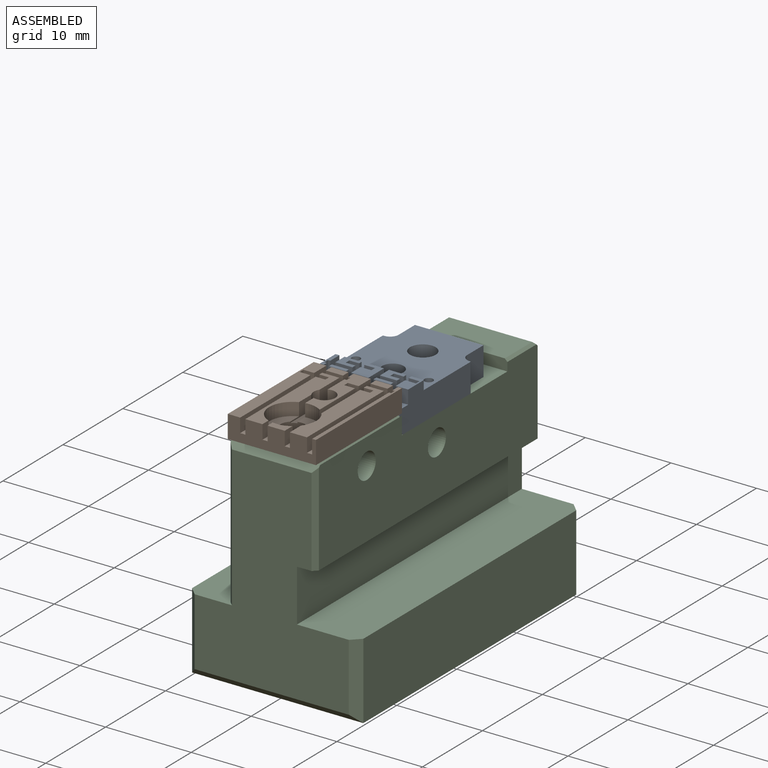
[diagram: assembled view]
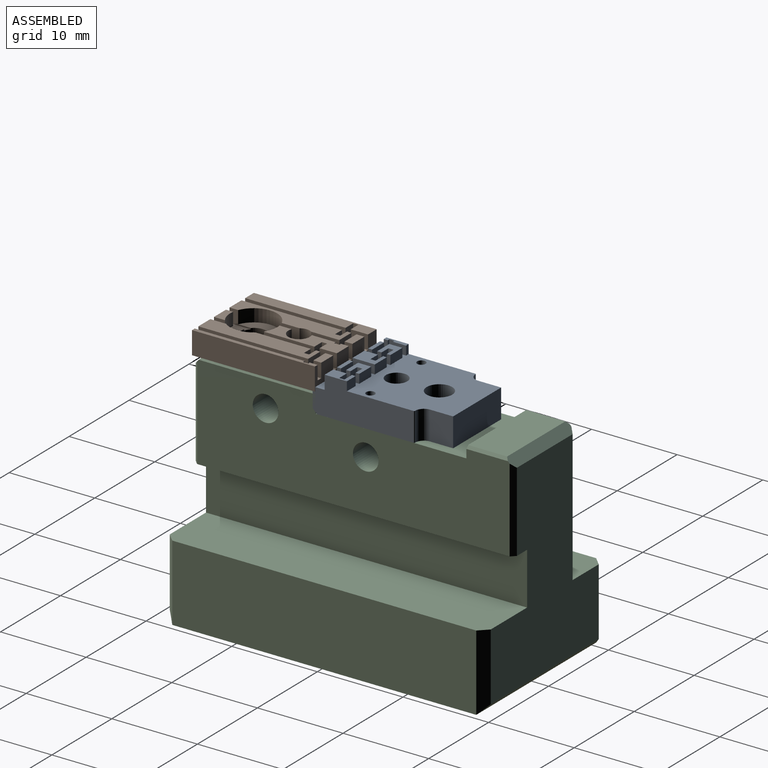
[diagram: assembled view, second angle]
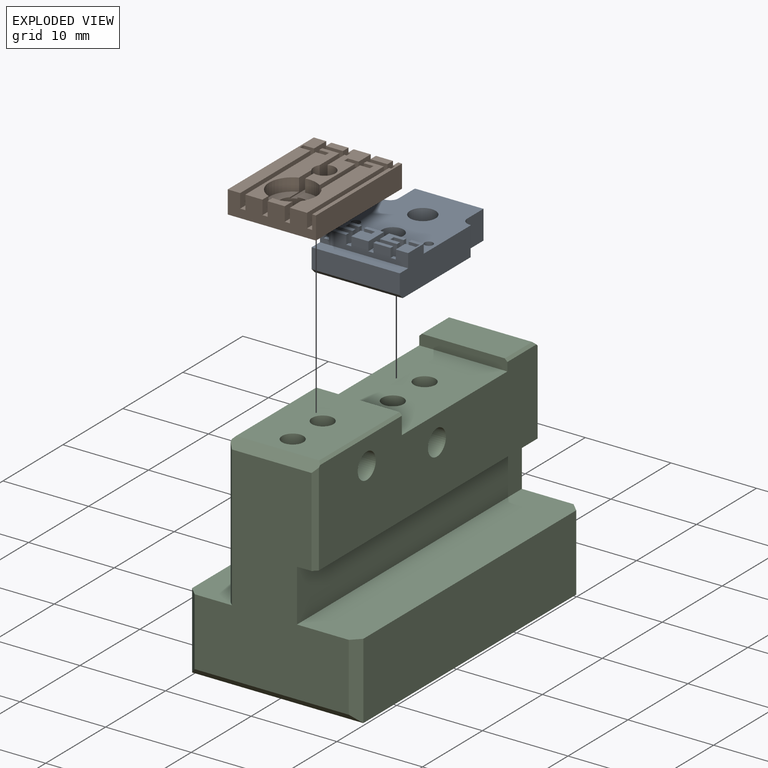
[diagram: exploded view]
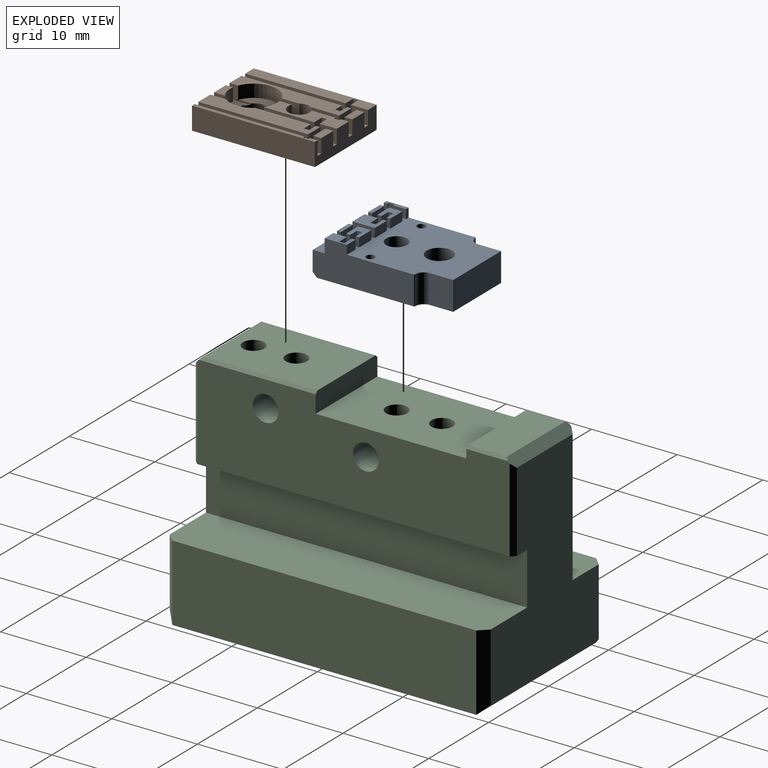
[diagram: exploded view, second angle]
ASSEMBLY  parts=3 mates=2
PART A: 68 faces, bbox 10.3x4.4x15.6 mm
  f0: plane 2x1.05mm, normal (0,0,1), area 2.1mm2, adj f6,f44,f63,f67
  f1: plane 2x1.05mm, normal (0,0,1), area 2.1mm2, adj f7,f44,f54,f62
  f2: plane 2x1.05mm, normal (0,0,1), area 2.1mm2, adj f9,f44,f53,f65
  f3: plane 1.45x1.05mm, normal (0,0,1), area 1.5mm2, adj f18,f20,f44,f64
  f4: plane 2.6x0.45mm, normal (0,-1,0), area 1mm2, adj f10,f11,f17,f19,f24,f45,f61,f66
  f5: plane 2x0.47mm, normal (0,-1,0), area 0.9mm2, adj f11,f17,f55,f60
  f6: plane 2x1.53mm, normal (0,-1,0), area 2.4mm2, adj f0,f10,f30,f31,f32,f58,f63,f67
  f7: plane 2.6x2mm, normal (0,-1,0), area 4.4mm2, adj f1,f17,f29,f30,f32,f54,f57,f62
  f8: plane 2x0.47mm, normal (0,-1,0), area 0.9mm2, adj f15,f17,f48,f52
  f9: plane 2x1.53mm, normal (0,-1,0), area 2.4mm2, adj f2,f13,f26,f27,f28,f51,f53,f65
  f10: plane 4.41x3mm, normal (0,0,-1), area 12.5mm2, adj f4,f6,f12,f22,f24,f44,f56,f58
  f11: plane 4.41x3mm, normal (0,0,1), area 12.5mm2, adj f4,f5,f12,f22,f24,f55,f56,f59
  f12: plane 3.36x0.6mm, normal (-1,0,0), area 2mm2, adj f10,f11,f22,f56
  f13: plane 4.41x3mm, normal (0,0,-1), area 12.2mm2, adj f9,f14,f16,f22,f44,f49,f51,f53
  f14: plane 3.36x0.6mm, normal (1,0,0), area 2mm2, adj f13,f15,f22,f44
  f15: plane 4.41x3mm, normal (0,0,1), area 12.2mm2, adj f8,f14,f16,f22,f44,f48,f49,f52
  f16: plane 3.36x0.6mm, normal (-1,0,0), area 2mm2, adj f13,f15,f22,f49
  f17: plane 10.3x1.6mm, normal (0,0,-1), area 14mm2, adj f4,f5,f7,f8,f18,f19,f20,f44
  f18: plane 2.6x1.45mm, normal (0,-1,0), area 3mm2, adj f3,f17,f20,f25,f26,f28,f50,f64
  f19: plane 11.79x4.41mm, normal (-1,0,0), area 41.4mm2, adj f4,f17,f22,f23,f42,f44,f45,f46
  f20: plane 11.79x4.41mm, normal (1,0,0), area 41.4mm2, adj f3,f17,f18,f22,f23,f43,f44,f46
  f21: plane 8x3.36mm, normal (0,0,1), area 26.9mm2, adj f22,f37,f39,f44
  f22: plane 15.1x10.3mm, normal (0,1,0), area 126.7mm2, adj f10,f11,f12,f13,f14,f15,f16,f19
  f23: plane 10.3x2.31mm, normal (0,0,-1), area 23.8mm2, adj f19,f20,f46,f47
  f24: plane 4.41x0.6mm, normal (1,0,0), area 2.6mm2, adj f4,f10,f11,f22
  f25: plane 4.41x0.6mm, normal (-1,0,0), area 2.6mm2, adj f18,f22,f26,f28
  f26: plane 4.41x3mm, normal (0,0,-1), area 12.6mm2, adj f9,f18,f22,f25,f27,f44,f64,f65
  f27: plane 4.41x0.6mm, normal (1,0,0), area 2.6mm2, adj f9,f22,f26,f28
  f28: plane 4.41x3mm, normal (0,0,1), area 12.6mm2, adj f9,f18,f22,f25,f27,f49,f50,f51
  f29: plane 4.41x0.6mm, normal (-1,0,0), area 2.6mm2, adj f7,f22,f30,f32
  f30: plane 4.41x3mm, normal (0,0,-1), area 12.6mm2, adj f6,f7,f22,f29,f31,f44,f62,f63
  f31: plane 4.41x0.6mm, normal (1,0,0), area 2.6mm2, adj f6,f22,f30,f32
  f32: plane 4.41x3mm, normal (0,0,1), area 12.6mm2, adj f6,f7,f22,f29,f31,f56,f57,f58
  f33: cylinder r=0.5mm len=3.36mm, axis (0,-1,0), area 10.6mm2, adj f22,f44
  f34: cylinder r=0.5mm len=3.36mm, axis (0,-1,0), area 10.6mm2, adj f22,f44
  f35: cylinder r=1.5mm len=3.36mm, axis (0,-1,0), area 31.7mm2, adj f22,f44
  f36: cylinder r=1.25mm len=3.36mm, axis (0,-1,0), area 26.4mm2, adj f22,f44
  f37: plane 3.36x2.71mm, normal (1,0,0), area 9.1mm2, adj f21,f22,f38,f44
  f38: cylinder r=1mm len=3.36mm, axis (0,-1,0), area 5.4mm2, adj f22,f37,f43,f44
  f39: plane 3.36x2.57mm, normal (-1,0,0), area 8.6mm2, adj f21,f22,f41,f44
  f40: cylinder r=1mm len=3.36mm, axis (0,-1,0), area 5.9mm2, adj f22,f41,f42,f44
  f41: plane 3.36x0.01mm, normal (0,0,1), area 0mm2, adj f22,f39,f40,f44
  f42: cylinder r=0.1mm len=3.36mm, axis (0,-1,0), area 0.5mm2, adj f19,f22,f40,f44
  f43: cylinder r=0.1mm len=3.36mm, axis (0,-1,0), area 0.5mm2, adj f20,f22,f38,f44
  f44: plane 14.2x10.3mm, normal (0,-1,0), area 100.5mm2, adj f0,f1,f2,f3,f10,f13,f14,f15
  f45: plane 1.05x0.45mm, normal (0,0,1), area 0.5mm2, adj f4,f19,f44,f66
  f46: plane 10.3x1.4mm, normal (0,-1,0), area 14.4mm2, adj f17,f19,f20,f23
  f47: plane 10.3x0.5mm, normal (0,0.71,-0.71), area 7.3mm2, adj f19,f20,f22,f23
  f48: plane 1.05x0.47mm, normal (1,0,0), area 0.5mm2, adj f8,f15,f17,f49
  f49: plane 1.57x0.6mm, normal (0,-1,0), area 0.6mm2, adj f13,f15,f16,f17,f28,f48,f50,f51
  f50: plane 1.57x1.05mm, normal (-1,0,0), area 1.6mm2, adj f17,f18,f28,f49
  f51: plane 1.05x0.5mm, normal (1,0,0), area 0.5mm2, adj f9,f13,f28,f49
  f52: plane 1.05x0.47mm, normal (-1,0,0), area 0.5mm2, adj f8,f15,f17,f44
  f53: plane 1.53x1.05mm, normal (-1,0,0), area 1.6mm2, adj f2,f9,f13,f44
  f54: plane 2.6x1.05mm, normal (1,0,0), area 2.7mm2, adj f1,f7,f17,f44
  f55: plane 1.05x0.47mm, normal (1,0,0), area 0.5mm2, adj f5,f11,f17,f56
  f56: plane 1.57x0.6mm, normal (0,-1,0), area 0.9mm2, adj f10,f11,f12,f17,f32,f55,f57,f58
  f57: plane 1.57x1.05mm, normal (-1,0,0), area 1.6mm2, adj f7,f17,f32,f56
  f58: plane 1.05x0.5mm, normal (1,0,0), area 0.5mm2, adj f6,f10,f32,f56
  f59: plane 0.6x0.47mm, normal (0,-1,0), area 0.3mm2, adj f11,f17,f60,f61
  f60: plane 1.05x0.47mm, normal (-1,0,0), area 0.5mm2, adj f5,f11,f17,f59
  f61: plane 1.05x0.47mm, normal (1,0,0), area 0.5mm2, adj f4,f11,f17,f59
  f62: plane 1.05x0.43mm, normal (-1,0,0), area 0.5mm2, adj f1,f7,f30,f44
  f63: plane 1.05x0.43mm, normal (1,0,0), area 0.5mm2, adj f0,f6,f30,f44
  f64: plane 1.05x0.43mm, normal (-1,0,0), area 0.5mm2, adj f3,f18,f26,f44
  f65: plane 1.05x0.43mm, normal (1,0,0), area 0.5mm2, adj f2,f9,f26,f44
  f66: plane 1.53x1.05mm, normal (1,0,0), area 1.6mm2, adj f4,f10,f44,f45
  f67: plane 1.53x1.05mm, normal (-1,0,0), area 1.6mm2, adj f0,f6,f10,f44
PART B: 70 faces, bbox 10.3x2.7x14.4 mm
  f0: cylinder r=1.5mm len=3mm, axis (0,1,0), area 10.6mm2, adj f22,f23,f35,f38,f39,f40,f41,f42
  f1: plane 10.3x2.65mm, normal (0,0,-1), area 23.4mm2, adj f12,f14,f16,f18,f24,f33,f34,f35
  f2: plane 10.3x2.65mm, normal (0,0,1), area 23.4mm2, adj f13,f15,f17,f18,f24,f33,f34,f35
  f3: plane 3x2.65mm, normal (0,0,-1), area 7mm2, adj f16,f18,f25,f26,f35,f47,f49,f50
  f4: plane 3x2.65mm, normal (0,0,-1), area 6.7mm2, adj f15,f17,f27,f30,f35,f48,f50,f54
  f5: plane 3x2.65mm, normal (0,0,1), area 6.7mm2, adj f15,f16,f27,f30,f35,f47,f50,f57
  f6: plane 3x2.65mm, normal (0,0,-1), area 6.7mm2, adj f13,f28,f31,f34,f35,f60,f63,f64
  f7: plane 3x2.65mm, normal (0,0,1), area 6.7mm2, adj f12,f28,f31,f34,f35,f60,f62,f67
  f8: plane 3x2.65mm, normal (0,0,-1), area 7mm2, adj f12,f15,f29,f32,f35,f60,f61,f62
  f9: plane 3x2.65mm, normal (0,0,1), area 7mm2, adj f12,f15,f29,f32,f35,f44,f45,f46
  f10: plane 3x2.65mm, normal (0,0,1), area 7mm2, adj f16,f18,f25,f26,f35,f51,f52,f53
  f11: cylinder r=1.25mm len=2.65mm, axis (0,1,0), area 18.2mm2, adj f15,f16,f35,f38,f39,f40,f57,f58
  f12: plane 12.83x2mm, normal (0,-1,0), area 23.6mm2, adj f1,f7,f8,f9,f29,f36,f45,f62
  f13: plane 2x0.92mm, normal (0,-1,0), area 1.8mm2, adj f2,f6,f63,f65
  f14: plane 2x1.28mm, normal (0,-1,0), area 1.8mm2, adj f1,f20,f42,f44
  f15: plane 8.53x2mm, normal (0,-1,0), area 11.9mm2, adj f2,f4,f5,f8,f9,f11,f19,f27
  f16: plane 12.83x2mm, normal (0,-1,0), area 18.5mm2, adj f1,f3,f5,f10,f11,f21,f26,f39
  f17: plane 2x0.92mm, normal (0,-1,0), area 1.8mm2, adj f2,f4,f48,f55
  f18: plane 14.35x1.45mm, normal (0,-1,0), area 20.1mm2, adj f1,f2,f3,f10,f25,f33,f49,f51
  f19: cylinder r=2.75mm len=2mm, axis (0,-1,0), area 3.1mm2, adj f15,f22,f38,f44
  f20: cylinder r=2.75mm len=2mm, axis (0,-1,0), area 3.1mm2, adj f14,f22,f42,f44
  f21: cylinder r=2.75mm len=5.08mm, axis (0,-1,0), area 9.7mm2, adj f16,f23,f39,f41
  f22: plane 5.5x2mm, normal (0,-1,0), area 5.6mm2, adj f0,f19,f20,f38,f42,f44
  f23: plane 5.08x1.7mm, normal (0,-1,0), area 5.6mm2, adj f0,f21,f39,f41
  f24: plane 14.35x2.65mm, normal (1,0,0), area 38mm2, adj f1,f2,f34,f35
  f25: plane 2.65x0.6mm, normal (1,0,0), area 1.6mm2, adj f3,f10,f18,f35
  f26: plane 2.65x0.6mm, normal (-1,0,0), area 1.6mm2, adj f3,f10,f16,f35
  f27: plane 2.65x0.6mm, normal (-1,0,0), area 1.6mm2, adj f4,f5,f15,f35
  f28: plane 2.65x0.6mm, normal (-1,0,0), area 1.6mm2, adj f6,f7,f34,f35
  f29: plane 2.65x0.6mm, normal (-1,0,0), area 1.6mm2, adj f8,f9,f12,f35
  f30: plane 1.01x0.6mm, normal (1,0,0), area 0.6mm2, adj f4,f5,f35,f50
  f31: plane 1.01x0.6mm, normal (1,0,0), area 0.6mm2, adj f6,f7,f35,f60
  f32: plane 2.65x0.6mm, normal (1,0,0), area 1.6mm2, adj f8,f9,f15,f35
  f33: plane 14.35x2.65mm, normal (-1,0,0), area 38mm2, adj f1,f2,f18,f35
  f34: plane 14.35x0.45mm, normal (0,-1,0), area 6.3mm2, adj f1,f2,f6,f7,f24,f28,f64,f69
  f35: plane 14.35x10.3mm, normal (0,1,0), area 128.6mm2, adj f0,f1,f2,f3,f4,f5,f6,f7
  f36: cylinder r=2.75mm len=3.43mm, axis (0,-1,0), area 5.6mm2, adj f12,f37,f45
  f37: plane 3.43x0.6mm, normal (0,-1,0), area 1.4mm2, adj f36,f45
  f38: plane 2.7x1.64mm, normal (-1,0,0), area 2.5mm2, adj f0,f11,f15,f19,f22,f40
  f39: plane 3.55x1.64mm, normal (1,0,0), area 3.6mm2, adj f0,f11,f16,f21,f23,f40
  f40: plane 3.55x0.6mm, normal (0,-1,0), area 1.8mm2, adj f0,f11,f38,f39
  f41: plane 2.48x1.64mm, normal (1,0,0), area 1.9mm2, adj f0,f1,f16,f21,f23,f43
  f42: plane 2.12x1.64mm, normal (-1,0,0), area 1.6mm2, adj f0,f1,f14,f20,f22,f43
  f43: plane 2.48x0.6mm, normal (0,-1,0), area 1.4mm2, adj f0,f1,f41,f42
  f44: plane 11.73x1.64mm, normal (1,0,0), area 12.4mm2, adj f1,f9,f14,f15,f19,f20,f22,f46
  f45: plane 11.73x1.64mm, normal (-1,0,0), area 14.1mm2, adj f1,f9,f12,f36,f37,f46
  f46: plane 11.73x0.6mm, normal (0,-1,0), area 7mm2, adj f1,f9,f44,f45
  f47: plane 1.64x0.5mm, normal (-1,0,0), area 0.8mm2, adj f3,f5,f16,f50
  f48: plane 1.64x0.92mm, normal (-1,0,0), area 1.5mm2, adj f2,f4,f17,f50
  f49: plane 2.02x1.64mm, normal (1,0,0), area 3.3mm2, adj f2,f3,f18,f50
  f50: plane 2.02x0.6mm, normal (0,-1,0), area 1.1mm2, adj f2,f3,f4,f5,f30,f47,f48,f49
  f51: plane 11.73x1.64mm, normal (1,0,0), area 19.2mm2, adj f1,f10,f18,f52
  f52: plane 11.73x0.6mm, normal (0,-1,0), area 7mm2, adj f1,f10,f51,f53
  f53: plane 11.73x1.64mm, normal (-1,0,0), area 19.2mm2, adj f1,f10,f16,f52
  f54: plane 1.64x0.92mm, normal (-1,0,0), area 1.5mm2, adj f2,f4,f15,f56
  f55: plane 1.64x0.92mm, normal (1,0,0), area 1.5mm2, adj f2,f4,f17,f56
  f56: plane 0.92x0.6mm, normal (0,-1,0), area 0.6mm2, adj f2,f4,f54,f55
  f57: plane 3.3x0.6mm, normal (0,-1,0), area 1.8mm2, adj f5,f11,f58,f59
  f58: plane 3.3x1.64mm, normal (1,0,0), area 5.4mm2, adj f5,f11,f16,f57
  f59: plane 2.81x1.64mm, normal (-1,0,0), area 4.6mm2, adj f5,f11,f15,f57
  f60: plane 2.02x0.6mm, normal (0,-1,0), area 1.1mm2, adj f2,f6,f7,f8,f31,f61,f62,f63
  f61: plane 2.02x1.64mm, normal (1,0,0), area 3.3mm2, adj f2,f8,f15,f60
  f62: plane 1.64x0.5mm, normal (-1,0,0), area 0.8mm2, adj f7,f8,f12,f60
  f63: plane 1.64x0.92mm, normal (-1,0,0), area 1.5mm2, adj f2,f6,f13,f60
  f64: plane 1.64x0.92mm, normal (-1,0,0), area 1.5mm2, adj f2,f6,f34,f66
  f65: plane 1.64x0.92mm, normal (1,0,0), area 1.5mm2, adj f2,f6,f13,f66
  f66: plane 0.92x0.6mm, normal (0,-1,0), area 0.6mm2, adj f2,f6,f64,f65
  f67: plane 12.83x0.6mm, normal (0,-1,0), area 7.7mm2, adj f1,f7,f68,f69
  f68: plane 12.83x1.64mm, normal (1,0,0), area 21mm2, adj f1,f7,f12,f67
  f69: plane 12.83x1.64mm, normal (-1,0,0), area 21mm2, adj f1,f7,f34,f67
PART C: 44 faces, bbox 20x37.5x26.4 mm
  f0: plane 36.5x11.05mm, normal (1,0,0), area 347.8mm2, adj f12,f16,f20,f22,f23,f24,f29,f31
  f1: plane 13.35x9.7mm, normal (0,0,1), area 119.7mm2, adj f4,f14,f24,f29,f42,f43
  f2: cylinder r=1.25mm len=24mm, axis (0,0,1), area 179.7mm2, adj f5,f16,f17,f18,f22
  f3: plane 36.5x17.15mm, normal (-1,0,0), area 584.6mm2, adj f8,f22,f23,f24,f29,f31,f36,f39
  f4: cylinder r=1.25mm len=26.35mm, axis (0,0,1), area 198.1mm2, adj f1,f5,f19,f20,f21
  f5: plane 35.5x20mm, normal (0,0,-1), area 700.2mm2, adj f2,f4,f9,f10,f28,f30
  f6: plane 24.35x18mm, normal (0,-1,0), area 284.8mm2, adj f8,f11,f12,f13,f28,f29,f32,f34
  f7: plane 23.3x18mm, normal (0,1,0), area 275mm2, adj f8,f11,f12,f13,f30,f31,f33,f35
  f8: plane 37.5x5.35mm, normal (0,0,1), area 181.1mm2, adj f3,f6,f7,f9,f32,f33,f36,f39
  f9: plane 35.5x8.9mm, normal (-1,0,0), area 315.9mm2, adj f5,f8,f32,f33
  f10: plane 35.5x8.9mm, normal (1,0,0), area 315.9mm2, adj f5,f11,f34,f35
  f11: plane 37.5x7.05mm, normal (0,0,1), area 263.4mm2, adj f6,f7,f10,f13,f34,f35
  f12: plane 37.5x2.2mm, normal (0,0,-1), area 82.2mm2, adj f0,f6,f7,f13,f37,f38
  f13: plane 37.5x6.1mm, normal (1,0,0), area 228.7mm2, adj f6,f7,f11,f12
  f14: cylinder r=1.25mm len=6mm, axis (0,0,1), area 47.1mm2, adj f1,f15
  f15: plane 2.5x2.5mm, normal (0,0,1), area 4.9mm2, adj f14
  f16: cylinder r=1.5mm len=5mm, axis (1,0,0), area 42.5mm2, adj f0,f2,f17,f18
  f17: plane 1.69x0.26mm, normal (1,0,0), area 0.3mm2, adj f2,f16
  f18: plane 1.69x0.26mm, normal (1,0,0), area 0.3mm2, adj f2,f16
  f19: plane 1.69x0.26mm, normal (1,0,0), area 0.3mm2, adj f4,f20
  f20: cylinder r=1.5mm len=5mm, axis (1,0,0), area 42.5mm2, adj f0,f4,f19,f21
  f21: plane 1.69x0.26mm, normal (1,0,0), area 0.3mm2, adj f4,f20
  f22: plane 17.6x10.3mm, normal (0,0,1), area 171.5mm2, adj f0,f2,f3,f23,f24,f26
  f23: plane 10.3x1.3mm, normal (0,-1,0), area 13.3mm2, adj f0,f3,f22,f27,f40,f41
  f24: plane 10.3x2.35mm, normal (0,1,0), area 24.1mm2, adj f0,f1,f3,f22,f42,f43
  f25: plane 2.5x2.5mm, normal (0,0,1), area 4.9mm2, adj f26
  f26: cylinder r=1.25mm len=3.65mm, axis (0,0,1), area 28.7mm2, adj f22,f25
  f27: plane 9.7x4.55mm, normal (0,0,1), area 44.1mm2, adj f23,f31,f40,f41
  f28: plane 20x1mm, normal (0,-0.71,-0.71), area 26.9mm2, adj f5,f6,f32,f34
  f29: plane 10.3x1mm, normal (0,-0.71,0.71), area 14.1mm2, adj f0,f1,f3,f6,f38,f39,f42,f43
  f30: plane 20x1mm, normal (0,0.71,-0.71), area 26.9mm2, adj f5,f7,f33,f35
  f31: plane 10.3x1mm, normal (0,0.71,0.71), area 14.1mm2, adj f0,f3,f7,f27,f36,f37,f40,f41
  f32: plane 8.9x1mm, normal (-0.71,-0.71,0), area 11.9mm2, adj f6,f8,f9,f28
  f33: plane 8.9x1mm, normal (-0.71,0.71,0), area 11.9mm2, adj f7,f8,f9,f30
  f34: plane 8.9x1mm, normal (0.71,-0.71,0), area 11.9mm2, adj f6,f10,f11,f28
  f35: plane 8.9x1mm, normal (0.71,0.71,0), area 11.9mm2, adj f7,f10,f11,f30
  f36: plane 15.9x0.5mm, normal (-0.71,0.71,0), area 11.1mm2, adj f3,f7,f8,f31
  f37: plane 9.8x0.5mm, normal (0.71,0.71,0), area 6.8mm2, adj f0,f7,f12,f31
  f38: plane 10.85x0.5mm, normal (0.71,-0.71,0), area 7.5mm2, adj f0,f6,f12,f29
  f39: plane 16.95x0.5mm, normal (-0.71,-0.71,0), area 11.8mm2, adj f3,f6,f8,f29
  f40: plane 4.85x0.3mm, normal (-0.71,0,0.71), area 2mm2, adj f3,f23,f27,f31
  f41: plane 4.85x0.3mm, normal (0.71,0,0.71), area 2mm2, adj f0,f23,f27,f31
  f42: plane 13.65x0.3mm, normal (0.71,0,0.71), area 5.7mm2, adj f0,f1,f24,f29
  f43: plane 13.65x0.3mm, normal (-0.71,0,0.71), area 5.7mm2, adj f1,f3,f24,f29
PLACE A rot(axis=(-1,0,0),90deg) t=(35.79,26.51,27.59)mm
PLACE B rot(axis=(-1,0,0),90deg) t=(35.84,12.46,29.94)mm
PLACE C rot(axis=(1,0,0),0deg) t=(40.64,50.01,3.59)mm
MATE fastened C.f14 <-> B.f0  axis (0,0,1) through (30.64,16.01,29.94)mm
MATE fastened C.f2 <-> A.f36  axis (0,0,1) through (30.64,32.71,27.59)mm
